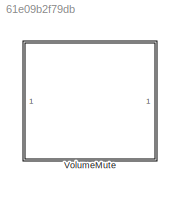
MODEL slx_61e09b2f79db
KIND library
CONFIG AbsTol = auto
CONFIG EnableMultiTasking = off
CONFIG FixedStep = auto
CONFIG MaxStep = auto
CONFIG MinStep = auto
CONFIG RelTol = 1e-3
CONFIG SampleTimeConstraint = Unconstrained
CONFIG SolverName = VariableStepAuto
CONFIG StartTime = 0.0
CONFIG StopTime = 10.0
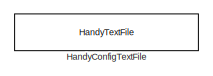
[diagram: VolumeMute - part 1/2, top center region]
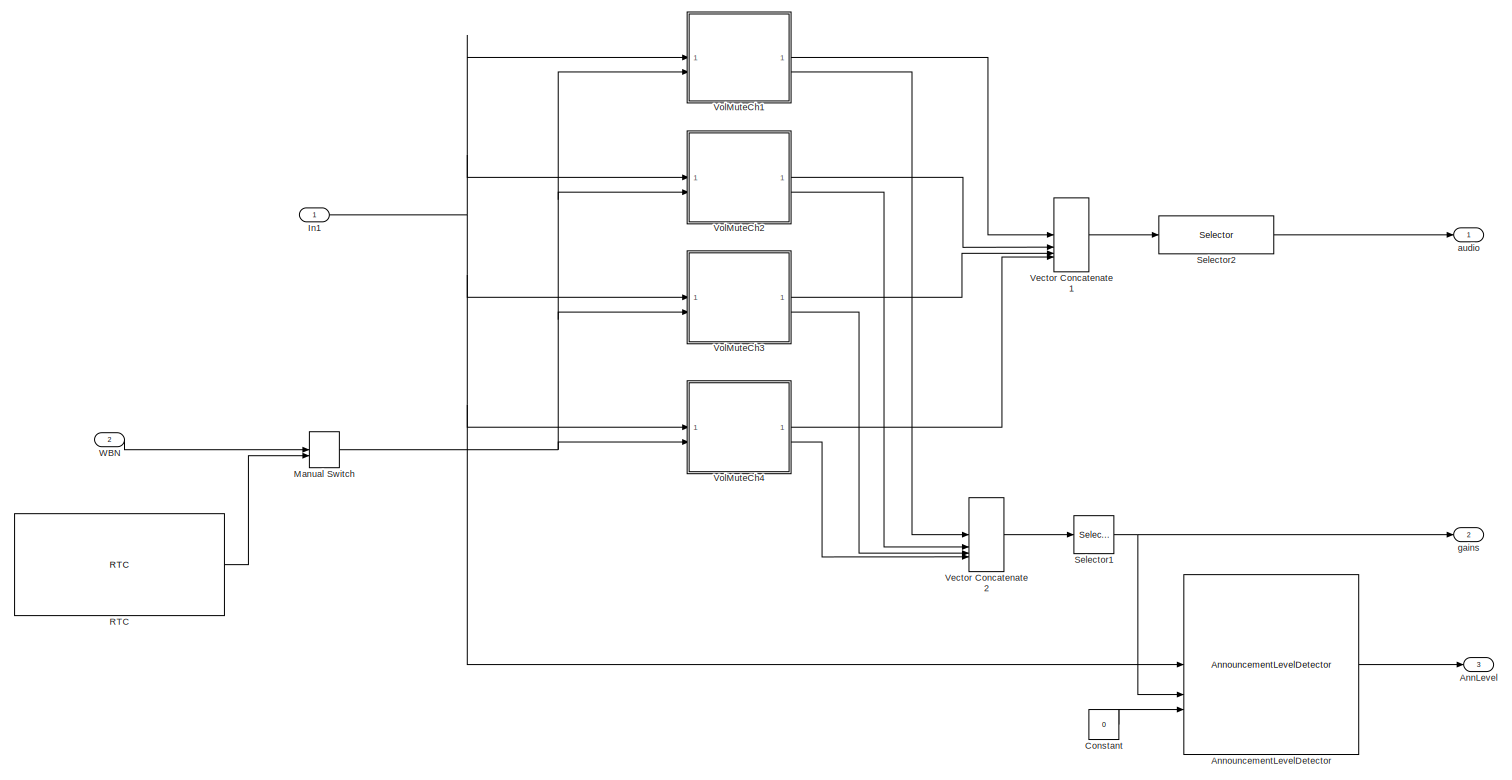
[diagram: VolumeMute - part 2/2, most of the canvas]
BLOCK [SubSystem] VolumeMute
BLOCK [Outport] VolumeMute/AnnLevel
  Port = 3
BLOCK [Reference] VolumeMute/AnnouncementLevelDetector  REF=AnnouncementLevelDetection/AnnouncementLevelDetector
  SourceBlock = AnnouncementLevelDetection/AnnouncementLevelDetector
  SourceType = Level Detector for AudioPilot, Dyanmic EQ, Fan and Boost-on-Demand
BLOCK [Constant] VolumeMute/Constant
  Value = 0
BLOCK [Reference] VolumeMute/HandyConfigTextFile  REF=HandyTextFile/HandyTextFile
  SourceBlock = HandyTextFile/HandyTextFile
  SourceProductName = Bose Talaria
  SourceType = Talaria Handy Text File
BLOCK [Inport] VolumeMute/In1
BLOCK [ManualSwitch] VolumeMute/Manual Switch
BLOCK [Reference] VolumeMute/RTC  REF=RTC/RTC
  SourceBlock = RTC/RTC
  SourceProductName = Bose Talaria
  SourceType = Talaria RTC Receive
BLOCK [Selector] VolumeMute/Selector1
  IndexOptions = Select all,Index vector (dialog)
  Indices = [1 3],1:Config.AnnChannelCount
  InputPortWidth = 3
  NumberOfDimensions = 2
  OutputSizes = 1,1
BLOCK [Selector] VolumeMute/Selector2
  IndexOptions = Select all,Index vector (dialog)
  Indices = [1 3],1:Config.AnnChannelCount
  InputPortWidth = 3
  NumberOfDimensions = 2
  OutputSizes = 1,1
BLOCK [Concatenate] VolumeMute/Vector Concatenate1
  ConcatenateDimension = 2
  Mode = Multidimensional array
  NumInputs = 4
BLOCK [Concatenate] VolumeMute/Vector Concatenate2
  ConcatenateDimension = 2
  Mode = Multidimensional array
  NumInputs = 4
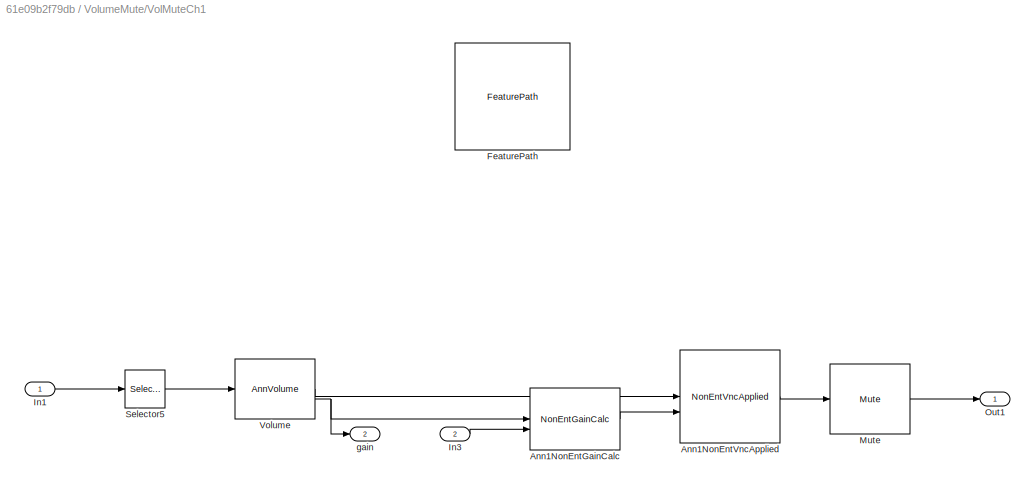
BLOCK [SubSystem] VolumeMute/VolMuteCh1
BLOCK [Reference] VolumeMute/VolMuteCh1/Ann1NonEntGainCalc  REF=NonEntGainCalcBtc/NonEntGainCalc
  SourceBlock = NonEntGainCalcBtc/NonEntGainCalc
  SourceProductName = Bose Blocklib
  SourceType = Blocklib NonEntGainCalc
BLOCK [Reference] VolumeMute/VolMuteCh1/Ann1NonEntVncApplied  REF=NonEntVncAppliedBtc/NonEntVncApplied
  SourceBlock = NonEntVncAppliedBtc/NonEntVncApplied
  SourceProductName = Bose Blocklib
  SourceType = Blocklib NonEntVncApplied
BLOCK [Reference] VolumeMute/VolMuteCh1/FeaturePath  REF=FeaturePath/FeaturePath
  SourceBlock = FeaturePath/FeaturePath
  SourceProductName = Bose Talaria
  SourceType = Talaria Feature Path
BLOCK [Inport] VolumeMute/VolMuteCh1/In1
BLOCK [Inport] VolumeMute/VolMuteCh1/In3
  Port = 2
BLOCK [Reference] VolumeMute/VolMuteCh1/Mute  REF=MuteBtc/Mute
  SourceBlock = MuteBtc/Mute
  SourceProductName = Bose Blocklib
  SourceType = Blocklib Mute
BLOCK [Outport] VolumeMute/VolMuteCh1/Out1
  VectorParamsAs1DForOutWhenUnconnected = off
BLOCK [Selector] VolumeMute/VolMuteCh1/Selector5
  IndexOptions = Select all,Index vector (dialog)
  Indices = [1 3],1
  InputPortWidth = 3
  NumberOfDimensions = 2
  OutputSizes = 1,1
BLOCK [Reference] VolumeMute/VolMuteCh1/Volume  REF=AnnVolumeBtc/AnnVolume
  SourceBlock = AnnVolumeBtc/AnnVolume
  SourceProductName = Bose Blocklib
  SourceType = Blocklib AnnVolume
BLOCK [Outport] VolumeMute/VolMuteCh1/gain
  Port = 2
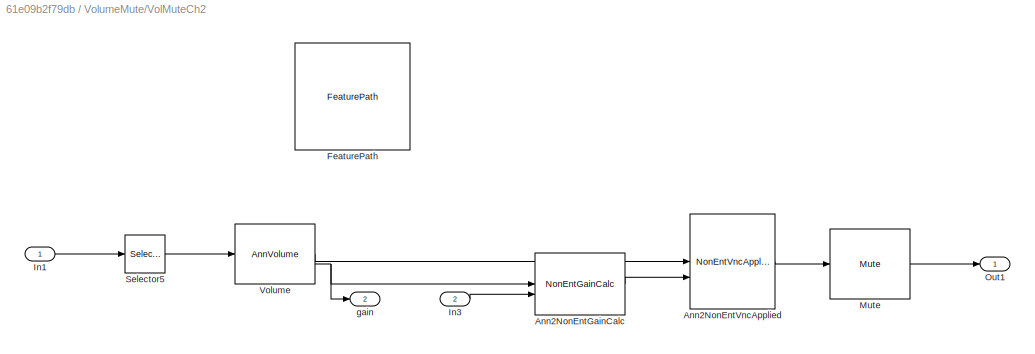
BLOCK [SubSystem] VolumeMute/VolMuteCh2
BLOCK [Reference] VolumeMute/VolMuteCh2/Ann2NonEntGainCalc  REF=NonEntGainCalcBtc/NonEntGainCalc
  SourceBlock = NonEntGainCalcBtc/NonEntGainCalc
  SourceProductName = Bose Blocklib
  SourceType = Blocklib NonEntGainCalc
BLOCK [Reference] VolumeMute/VolMuteCh2/Ann2NonEntVncApplied  REF=NonEntVncAppliedBtc/NonEntVncApplied
  SourceBlock = NonEntVncAppliedBtc/NonEntVncApplied
  SourceProductName = Bose Blocklib
  SourceType = Blocklib NonEntVncApplied
BLOCK [Reference] VolumeMute/VolMuteCh2/FeaturePath  REF=FeaturePath/FeaturePath
  SourceBlock = FeaturePath/FeaturePath
  SourceProductName = Bose Talaria
  SourceType = Talaria Feature Path
BLOCK [Inport] VolumeMute/VolMuteCh2/In1
BLOCK [Inport] VolumeMute/VolMuteCh2/In3
  Port = 2
BLOCK [Reference] VolumeMute/VolMuteCh2/Mute  REF=MuteBtc/Mute
  SourceBlock = MuteBtc/Mute
  SourceProductName = Bose Blocklib
  SourceType = Blocklib Mute
BLOCK [Outport] VolumeMute/VolMuteCh2/Out1
  VectorParamsAs1DForOutWhenUnconnected = off
BLOCK [Selector] VolumeMute/VolMuteCh2/Selector5
  IndexOptions = Select all,Index vector (dialog)
  Indices = [1 3],min(2, Config.AnnChannelCount)
  InputPortWidth = 3
  NumberOfDimensions = 2
  OutputSizes = 1,1
BLOCK [Reference] VolumeMute/VolMuteCh2/Volume  REF=AnnVolumeBtc/AnnVolume
  SourceBlock = AnnVolumeBtc/AnnVolume
  SourceProductName = Bose Blocklib
  SourceType = Blocklib AnnVolume
BLOCK [Outport] VolumeMute/VolMuteCh2/gain
  Port = 2
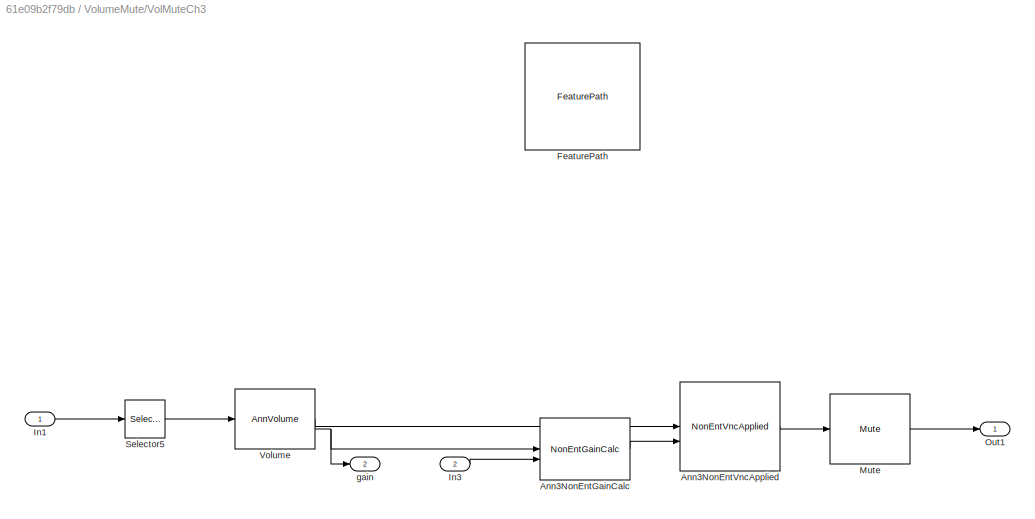
BLOCK [SubSystem] VolumeMute/VolMuteCh3
BLOCK [Reference] VolumeMute/VolMuteCh3/Ann3NonEntGainCalc  REF=NonEntGainCalcBtc/NonEntGainCalc
  SourceBlock = NonEntGainCalcBtc/NonEntGainCalc
  SourceProductName = Bose Blocklib
  SourceType = Blocklib NonEntGainCalc
BLOCK [Reference] VolumeMute/VolMuteCh3/Ann3NonEntVncApplied  REF=NonEntVncAppliedBtc/NonEntVncApplied
  SourceBlock = NonEntVncAppliedBtc/NonEntVncApplied
  SourceProductName = Bose Blocklib
  SourceType = Blocklib NonEntVncApplied
BLOCK [Reference] VolumeMute/VolMuteCh3/FeaturePath  REF=FeaturePath/FeaturePath
  SourceBlock = FeaturePath/FeaturePath
  SourceProductName = Bose Talaria
  SourceType = Talaria Feature Path
BLOCK [Inport] VolumeMute/VolMuteCh3/In1
BLOCK [Inport] VolumeMute/VolMuteCh3/In3
  Port = 2
BLOCK [Reference] VolumeMute/VolMuteCh3/Mute  REF=MuteBtc/Mute
  SourceBlock = MuteBtc/Mute
  SourceProductName = Bose Blocklib
  SourceType = Blocklib Mute
BLOCK [Outport] VolumeMute/VolMuteCh3/Out1
  VectorParamsAs1DForOutWhenUnconnected = off
BLOCK [Selector] VolumeMute/VolMuteCh3/Selector5
  IndexOptions = Select all,Index vector (dialog)
  Indices = [1 3],min(3, Config.AnnChannelCount)
  InputPortWidth = 3
  NumberOfDimensions = 2
  OutputSizes = 1,1
BLOCK [Reference] VolumeMute/VolMuteCh3/Volume  REF=AnnVolumeBtc/AnnVolume
  SourceBlock = AnnVolumeBtc/AnnVolume
  SourceProductName = Bose Blocklib
  SourceType = Blocklib AnnVolume
BLOCK [Outport] VolumeMute/VolMuteCh3/gain
  Port = 2
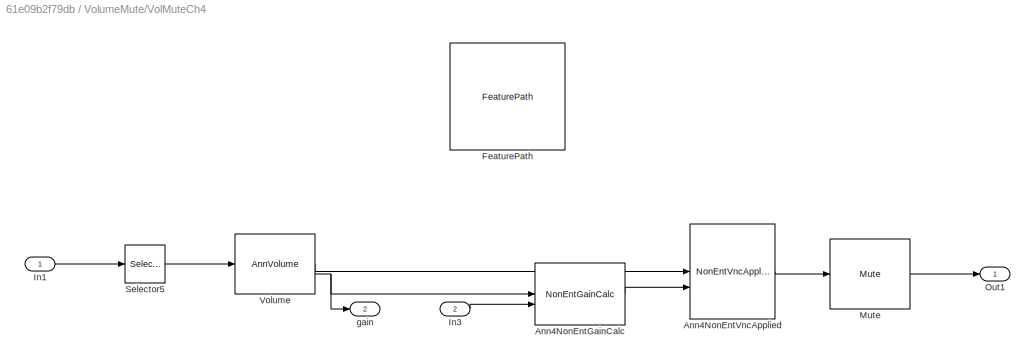
BLOCK [SubSystem] VolumeMute/VolMuteCh4
BLOCK [Reference] VolumeMute/VolMuteCh4/Ann4NonEntGainCalc  REF=NonEntGainCalcBtc/NonEntGainCalc
  SourceBlock = NonEntGainCalcBtc/NonEntGainCalc
  SourceProductName = Bose Blocklib
  SourceType = Blocklib NonEntGainCalc
BLOCK [Reference] VolumeMute/VolMuteCh4/Ann4NonEntVncApplied  REF=NonEntVncAppliedBtc/NonEntVncApplied
  SourceBlock = NonEntVncAppliedBtc/NonEntVncApplied
  SourceProductName = Bose Blocklib
  SourceType = Blocklib NonEntVncApplied
BLOCK [Reference] VolumeMute/VolMuteCh4/FeaturePath  REF=FeaturePath/FeaturePath
  SourceBlock = FeaturePath/FeaturePath
  SourceProductName = Bose Talaria
  SourceType = Talaria Feature Path
BLOCK [Inport] VolumeMute/VolMuteCh4/In1
BLOCK [Inport] VolumeMute/VolMuteCh4/In3
  Port = 2
BLOCK [Reference] VolumeMute/VolMuteCh4/Mute  REF=MuteBtc/Mute
  SourceBlock = MuteBtc/Mute
  SourceProductName = Bose Blocklib
  SourceType = Blocklib Mute
BLOCK [Outport] VolumeMute/VolMuteCh4/Out1
  VectorParamsAs1DForOutWhenUnconnected = off
BLOCK [Selector] VolumeMute/VolMuteCh4/Selector5
  IndexOptions = Select all,Index vector (dialog)
  Indices = [1 3],min(4, Config.AnnChannelCount)
  InputPortWidth = 3
  NumberOfDimensions = 2
  OutputSizes = 1,1
BLOCK [Reference] VolumeMute/VolMuteCh4/Volume  REF=AnnVolumeBtc/AnnVolume
  SourceBlock = AnnVolumeBtc/AnnVolume
  SourceProductName = Bose Blocklib
  SourceType = Blocklib AnnVolume
BLOCK [Outport] VolumeMute/VolMuteCh4/gain
  Port = 2
BLOCK [Inport] VolumeMute/WBN
  Port = 2
BLOCK [Outport] VolumeMute/audio
  VectorParamsAs1DForOutWhenUnconnected = off
BLOCK [Outport] VolumeMute/gains
  Port = 2
LINE VolumeMute/AnnouncementLevelDetector:1 -> VolumeMute/AnnLevel:1
LINE VolumeMute/Constant:1 -> VolumeMute/AnnouncementLevelDetector:3
NET VolumeMute/In1:1 -> VolumeMute/AnnouncementLevelDetector:1, VolumeMute/VolMuteCh1:1, VolumeMute/VolMuteCh2:1, VolumeMute/VolMuteCh3:1, VolumeMute/VolMuteCh4:1
NET VolumeMute/Manual Switch:1 -> VolumeMute/VolMuteCh1:2, VolumeMute/VolMuteCh2:2, VolumeMute/VolMuteCh3:2, VolumeMute/VolMuteCh4:2
LINE VolumeMute/RTC:1 -> VolumeMute/Manual Switch:2
NET VolumeMute/Selector1:1 -> VolumeMute/AnnouncementLevelDetector:2, VolumeMute/gains:1
LINE VolumeMute/Selector2:1 -> VolumeMute/audio:1
LINE VolumeMute/Vector Concatenate1:1 -> VolumeMute/Selector2:1
LINE VolumeMute/Vector Concatenate2:1 -> VolumeMute/Selector1:1
LINE VolumeMute/VolMuteCh1/Ann1NonEntGainCalc:1 -> VolumeMute/VolMuteCh1/Ann1NonEntVncApplied:2
LINE VolumeMute/VolMuteCh1/Ann1NonEntVncApplied:1 -> VolumeMute/VolMuteCh1/Mute:1
LINE VolumeMute/VolMuteCh1/In1:1 -> VolumeMute/VolMuteCh1/Selector5:1
LINE VolumeMute/VolMuteCh1/In3:1 -> VolumeMute/VolMuteCh1/Ann1NonEntGainCalc:2
LINE VolumeMute/VolMuteCh1/Mute:1 -> VolumeMute/VolMuteCh1/Out1:1
LINE VolumeMute/VolMuteCh1/Selector5:1 -> VolumeMute/VolMuteCh1/Volume:1
LINE VolumeMute/VolMuteCh1/Volume:1 -> VolumeMute/VolMuteCh1/Ann1NonEntVncApplied:1
NET VolumeMute/VolMuteCh1/Volume:2 -> VolumeMute/VolMuteCh1/Ann1NonEntGainCalc:1, VolumeMute/VolMuteCh1/gain:1
LINE VolumeMute/VolMuteCh1:1 -> VolumeMute/Vector Concatenate1:1
LINE VolumeMute/VolMuteCh1:2 -> VolumeMute/Vector Concatenate2:1
LINE VolumeMute/VolMuteCh2/Ann2NonEntGainCalc:1 -> VolumeMute/VolMuteCh2/Ann2NonEntVncApplied:2
LINE VolumeMute/VolMuteCh2/Ann2NonEntVncApplied:1 -> VolumeMute/VolMuteCh2/Mute:1
LINE VolumeMute/VolMuteCh2/In1:1 -> VolumeMute/VolMuteCh2/Selector5:1
LINE VolumeMute/VolMuteCh2/In3:1 -> VolumeMute/VolMuteCh2/Ann2NonEntGainCalc:2
LINE VolumeMute/VolMuteCh2/Mute:1 -> VolumeMute/VolMuteCh2/Out1:1
LINE VolumeMute/VolMuteCh2/Selector5:1 -> VolumeMute/VolMuteCh2/Volume:1
LINE VolumeMute/VolMuteCh2/Volume:1 -> VolumeMute/VolMuteCh2/Ann2NonEntVncApplied:1
NET VolumeMute/VolMuteCh2/Volume:2 -> VolumeMute/VolMuteCh2/Ann2NonEntGainCalc:1, VolumeMute/VolMuteCh2/gain:1
LINE VolumeMute/VolMuteCh2:1 -> VolumeMute/Vector Concatenate1:2
LINE VolumeMute/VolMuteCh2:2 -> VolumeMute/Vector Concatenate2:2
LINE VolumeMute/VolMuteCh3/Ann3NonEntGainCalc:1 -> VolumeMute/VolMuteCh3/Ann3NonEntVncApplied:2
LINE VolumeMute/VolMuteCh3/Ann3NonEntVncApplied:1 -> VolumeMute/VolMuteCh3/Mute:1
LINE VolumeMute/VolMuteCh3/In1:1 -> VolumeMute/VolMuteCh3/Selector5:1
LINE VolumeMute/VolMuteCh3/In3:1 -> VolumeMute/VolMuteCh3/Ann3NonEntGainCalc:2
LINE VolumeMute/VolMuteCh3/Mute:1 -> VolumeMute/VolMuteCh3/Out1:1
LINE VolumeMute/VolMuteCh3/Selector5:1 -> VolumeMute/VolMuteCh3/Volume:1
LINE VolumeMute/VolMuteCh3/Volume:1 -> VolumeMute/VolMuteCh3/Ann3NonEntVncApplied:1
NET VolumeMute/VolMuteCh3/Volume:2 -> VolumeMute/VolMuteCh3/Ann3NonEntGainCalc:1, VolumeMute/VolMuteCh3/gain:1
LINE VolumeMute/VolMuteCh3:1 -> VolumeMute/Vector Concatenate1:3
LINE VolumeMute/VolMuteCh3:2 -> VolumeMute/Vector Concatenate2:3
LINE VolumeMute/VolMuteCh4/Ann4NonEntGainCalc:1 -> VolumeMute/VolMuteCh4/Ann4NonEntVncApplied:2
LINE VolumeMute/VolMuteCh4/Ann4NonEntVncApplied:1 -> VolumeMute/VolMuteCh4/Mute:1
LINE VolumeMute/VolMuteCh4/In1:1 -> VolumeMute/VolMuteCh4/Selector5:1
LINE VolumeMute/VolMuteCh4/In3:1 -> VolumeMute/VolMuteCh4/Ann4NonEntGainCalc:2
LINE VolumeMute/VolMuteCh4/Mute:1 -> VolumeMute/VolMuteCh4/Out1:1
LINE VolumeMute/VolMuteCh4/Selector5:1 -> VolumeMute/VolMuteCh4/Volume:1
LINE VolumeMute/VolMuteCh4/Volume:1 -> VolumeMute/VolMuteCh4/Ann4NonEntVncApplied:1
NET VolumeMute/VolMuteCh4/Volume:2 -> VolumeMute/VolMuteCh4/Ann4NonEntGainCalc:1, VolumeMute/VolMuteCh4/gain:1
LINE VolumeMute/VolMuteCh4:1 -> VolumeMute/Vector Concatenate1:4
LINE VolumeMute/VolMuteCh4:2 -> VolumeMute/Vector Concatenate2:4
LINE VolumeMute/WBN:1 -> VolumeMute/Manual Switch:1
note: NET lines group one-source signal fan-out (src -> all destinations, sorted); 1:1 wires keep LINE
